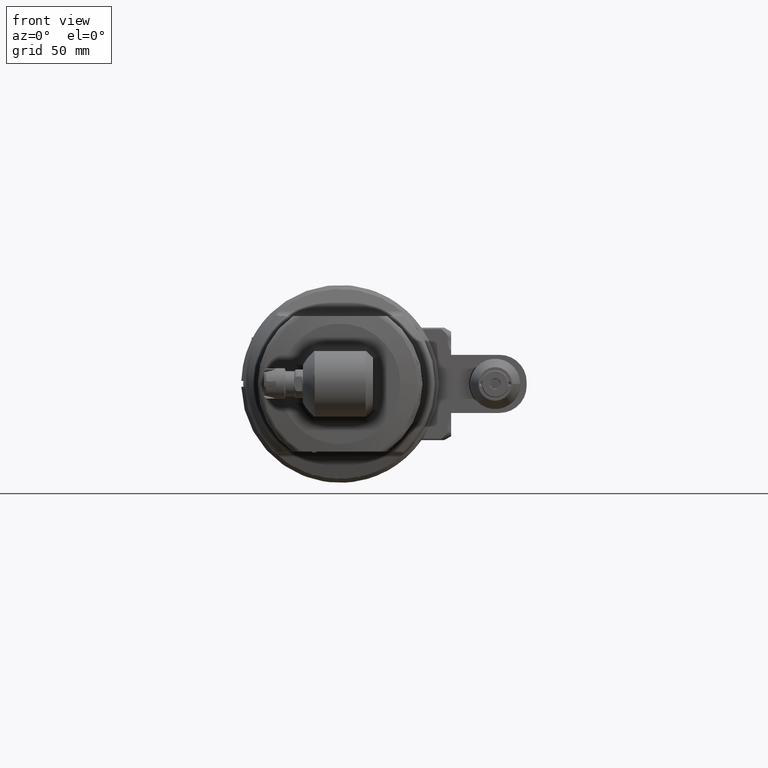
[diagram: clean part render]
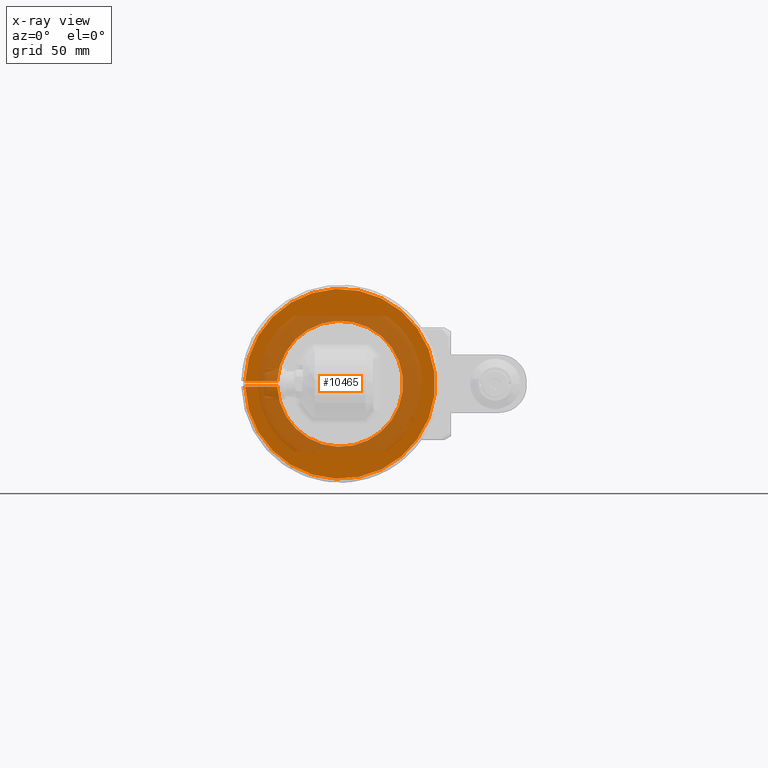
[diagram: x-ray — body ghosted, one internal face saturated and labeled with its STEP entity id]
A machine part, front view, then the same camera in x-ray: the body is ghosted and one INTERNAL B-rep face — a face not visible from any outside direction — is saturated and labeled: STEP entity #10465.
In plain terms, the highlighted planar face has unit normal (0, -1, 0).
Its self-contained STEP definition (entity closure, byte-faithful):
#1032=CIRCLE('',#11425,49.);
#1035=CIRCLE('',#11430,32.5);
#1584=FACE_OUTER_BOUND('',#2289,.T.);
#2289=EDGE_LOOP('',(#8131,#8132,#8133,#8134));
#3013=LINE('',#17179,#3765);
#3018=LINE('',#17213,#3770);
#3765=VECTOR('',#13488,16.51166927349);
#3770=VECTOR('',#13499,16.51166927349);
#4645=VERTEX_POINT('',#17168);
#4646=VERTEX_POINT('',#17172);
#4647=VERTEX_POINT('',#17178);
#4655=VERTEX_POINT('',#17212);
#5896=EDGE_CURVE('',#4646,#4645,#1032,.T.);
#5898=EDGE_CURVE('',#4647,#4646,#3013,.T.);
#5907=EDGE_CURVE('',#4645,#4655,#3018,.T.);
#5908=EDGE_CURVE('',#4655,#4647,#1035,.T.);
#8131=ORIENTED_EDGE('',*,*,#5896,.T.);
#8132=ORIENTED_EDGE('',*,*,#5907,.T.);
#8133=ORIENTED_EDGE('',*,*,#5908,.T.);
#8134=ORIENTED_EDGE('',*,*,#5898,.T.);
#10000=PLANE('',#11429);
#10465=ADVANCED_FACE('',(#1584),#10000,.T.);
#11425=AXIS2_PLACEMENT_3D('',#17173,#13484,#13485);
#11429=AXIS2_PLACEMENT_3D('',#17211,#13497,#13498);
#11430=AXIS2_PLACEMENT_3D('',#17214,#13500,#13501);
#13484=DIRECTION('center_axis',(0.,-1.,0.));
#13485=DIRECTION('ref_axis',(1.,0.,0.));
#13488=DIRECTION('',(-1.,0.,0.));
#13497=DIRECTION('center_axis',(0.,-1.,0.));
#13498=DIRECTION('ref_axis',(-1.,0.,0.));
#13499=DIRECTION('',(1.,0.,0.));
#13500=DIRECTION('center_axis',(0.,1.,0.));
#13501=DIRECTION('ref_axis',(-0.998934343430642,0.,0.0461538461538519));
#17168=CARTESIAN_POINT('',(-48.97703543499,0.,1.5));
#17172=CARTESIAN_POINT('',(-48.97703543499,0.,-1.5));
#17173=CARTESIAN_POINT('Origin',(0.,0.,0.));
#17178=CARTESIAN_POINT('',(-32.4653661615,0.,-1.5));
#17179=CARTESIAN_POINT('',(-32.4653661615,0.,-1.5));
#17211=CARTESIAN_POINT('Origin',(-49.13074005203,0.,0.));
#17212=CARTESIAN_POINT('',(-32.4653661615,0.,1.5));
#17213=CARTESIAN_POINT('',(-48.97703543499,0.,1.5));
#17214=CARTESIAN_POINT('Origin',(0.,0.,0.));